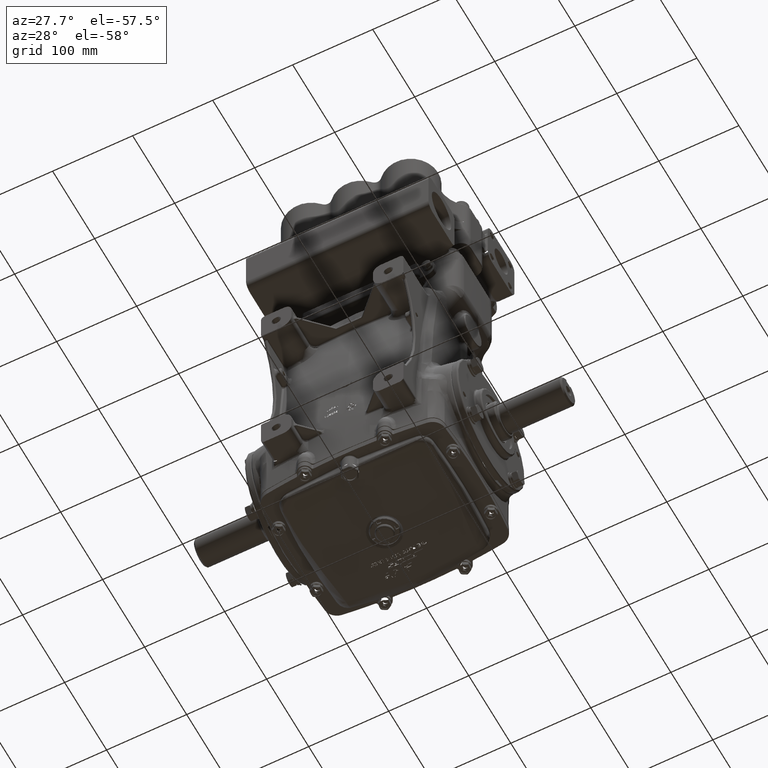
[diagram: clean part render]
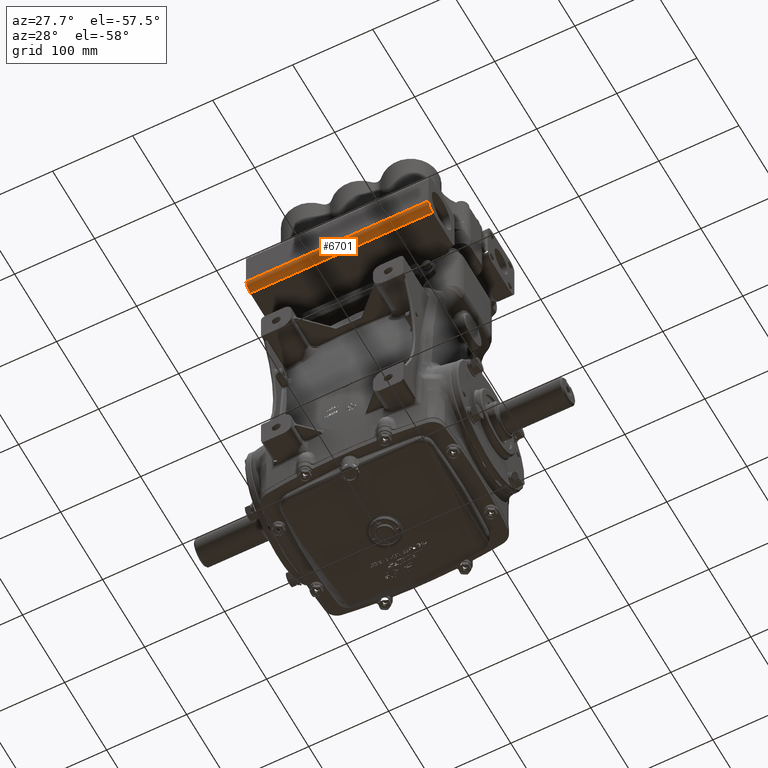
[diagram: same view with one face highlighted and labeled with its STEP entity id]
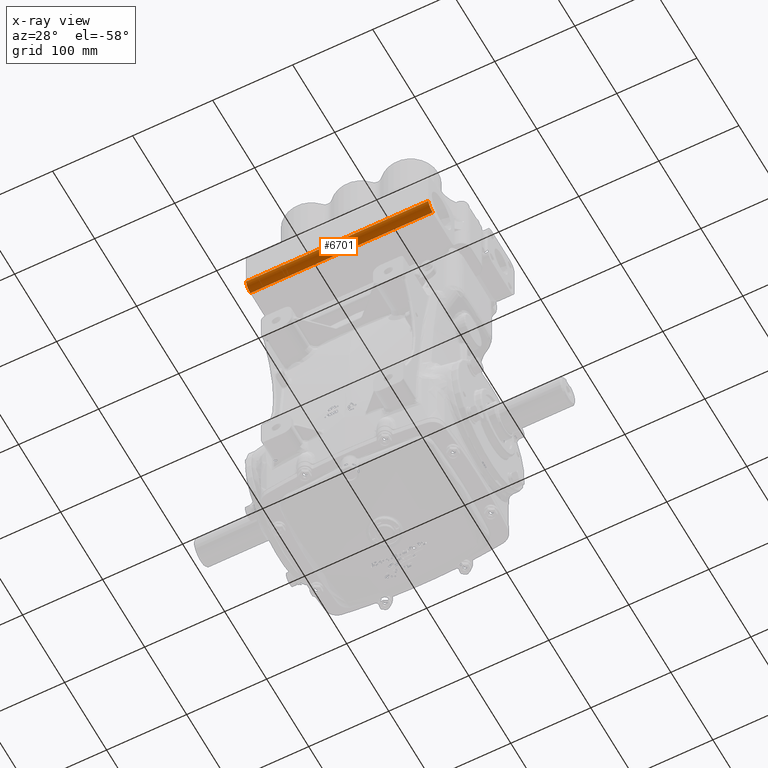
[diagram: x-ray of the same camera — body ghosted, the highlighted face saturated]
A machine part, auxiliary view. The second image highlights one B-rep face of the part: STEP entity #6701.
The next image is the same camera in x-ray: the body ghosted, the highlighted face saturated — about 0% of this face is hidden behind the body in this view.
In plain terms, the highlighted cylindrical surface (edge-blend (fillet) strip) has radius 10 mm, axis along (1, 0, 0).
Its self-contained STEP definition (entity closure, byte-faithful):
#482 = FACE_OUTER_BOUND ( 'NONE', #113661, .T. ) ;
#2235 = LINE ( 'NONE', #42914, #29819 ) ;
#5120 = ORIENTED_EDGE ( 'NONE', *, *, #70890, .F. ) ;
#6701 = ADVANCED_FACE ( 'NONE', ( #482 ), #41177, .T. ) ;
#15524 = VERTEX_POINT ( 'NONE', #90143 ) ;
#17775 = CARTESIAN_POINT ( 'NONE',  ( -4.488188976377953665, -4.055118110236221263, 12.53937007874015741 ) ) ;
#25929 = DIRECTION ( 'NONE',  ( -1.000000000000000000, -0.0000000000000000000, 0.0000000000000000000 ) ) ;
#29819 = VECTOR ( 'NONE', #83630, 39.37007874015748143 ) ;
#31166 = DIRECTION ( 'NONE',  ( 0.0000000000000000000, 0.0000000000000000000, -1.000000000000000000 ) ) ;
#37065 = CARTESIAN_POINT ( 'NONE',  ( -1.092739197465705287E-15, -4.448818897637795367, 12.53937007874015741 ) ) ;
#38818 = CIRCLE ( 'NONE', #130426, 0.3937007874015751585 ) ;
#39009 = EDGE_CURVE ( 'NONE', #44436, #15524, #38818, .T. ) ;
#41177 = CYLINDRICAL_SURFACE ( 'NONE', #68394, 0.3937007874015751585 ) ;
#41816 = EDGE_CURVE ( 'NONE', #49467, #15524, #128465, .T. ) ;
#42914 = CARTESIAN_POINT ( 'NONE',  ( -4.488188976377953665, -4.055118110236221263, 12.14566929133858331 ) ) ;
#44436 = VERTEX_POINT ( 'NONE', #95491 ) ;
#46759 = EDGE_CURVE ( 'NONE', #44436, #57853, #2235, .T. ) ;
#49467 = VERTEX_POINT ( 'NONE', #58130 ) ;
#53942 = AXIS2_PLACEMENT_3D ( 'NONE', #17775, #58471, #99199 ) ;
#56233 = VECTOR ( 'NONE', #77775, 39.37007874015748143 ) ;
#57853 = VERTEX_POINT ( 'NONE', #101455 ) ;
#58130 = CARTESIAN_POINT ( 'NONE',  ( -4.488188976377953665, -4.448818897637795367, 12.53937007874015741 ) ) ;
#58471 = DIRECTION ( 'NONE',  ( -1.000000000000000000, 0.0000000000000000000, 0.0000000000000000000 ) ) ;
#66639 = DIRECTION ( 'NONE',  ( 0.0000000000000000000, 0.0000000000000000000, 1.000000000000000000 ) ) ;
#68394 = AXIS2_PLACEMENT_3D ( 'NONE', #81887, #122575, #31166 ) ;
#70433 = ORIENTED_EDGE ( 'NONE', *, *, #41816, .F. ) ;
#70890 = EDGE_CURVE ( 'NONE', #57853, #49467, #111483, .T. ) ;
#77775 = DIRECTION ( 'NONE',  ( 1.000000000000000000, -0.0000000000000000000, -0.0000000000000000000 ) ) ;
#80863 = ORIENTED_EDGE ( 'NONE', *, *, #46759, .F. ) ;
#81887 = CARTESIAN_POINT ( 'NONE',  ( -2.440944881889764329, -4.055118110236221263, 12.53937007874015741 ) ) ;
#83630 = DIRECTION ( 'NONE',  ( -1.000000000000000000, 0.0000000000000000000, 0.0000000000000000000 ) ) ;
#90143 = CARTESIAN_POINT ( 'NONE',  ( 4.488188976377952777, -4.448818897637795367, 12.53937007874015741 ) ) ;
#95491 = CARTESIAN_POINT ( 'NONE',  ( 4.488188976377952777, -4.055118110236221263, 12.14566929133858331 ) ) ;
#99199 = DIRECTION ( 'NONE',  ( 0.0000000000000000000, 0.0000000000000000000, 1.000000000000000000 ) ) ;
#101455 = CARTESIAN_POINT ( 'NONE',  ( -4.488188976377953665, -4.055118110236221263, 12.14566929133858331 ) ) ;
#111483 = CIRCLE ( 'NONE', #53942, 0.3937007874015751585 ) ;
#113661 = EDGE_LOOP ( 'NONE', ( #80863, #127587, #70433, #5120 ) ) ;
#117350 = CARTESIAN_POINT ( 'NONE',  ( 4.488188976377952777, -4.055118110236221263, 12.53937007874015741 ) ) ;
#122575 = DIRECTION ( 'NONE',  ( 1.000000000000000000, 0.0000000000000000000, 0.0000000000000000000 ) ) ;
#127587 = ORIENTED_EDGE ( 'NONE', *, *, #39009, .T. ) ;
#128465 = LINE ( 'NONE', #37065, #56233 ) ;
#130426 = AXIS2_PLACEMENT_3D ( 'NONE', #117350, #25929, #66639 ) ;